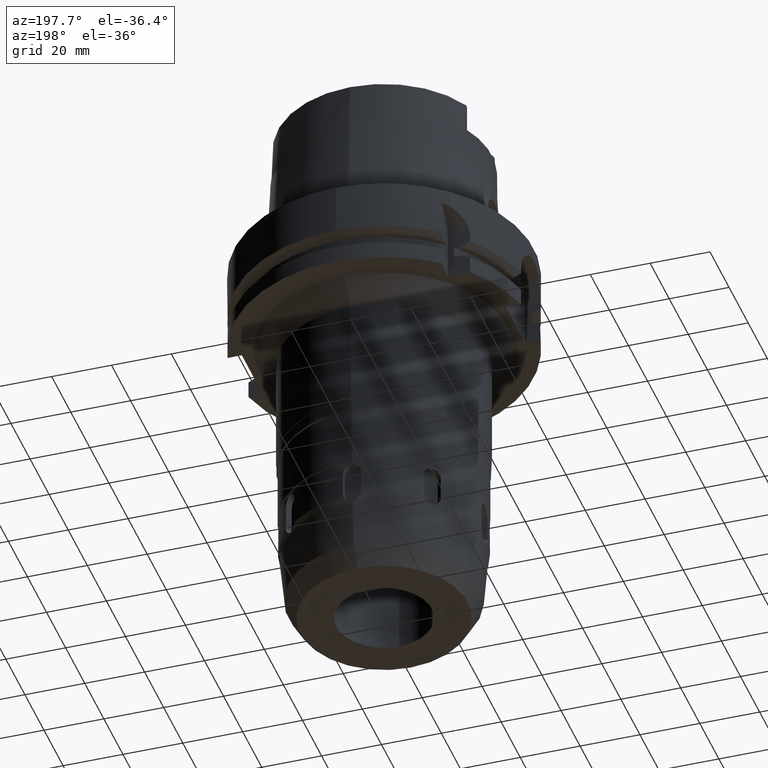
[diagram: clean part render]
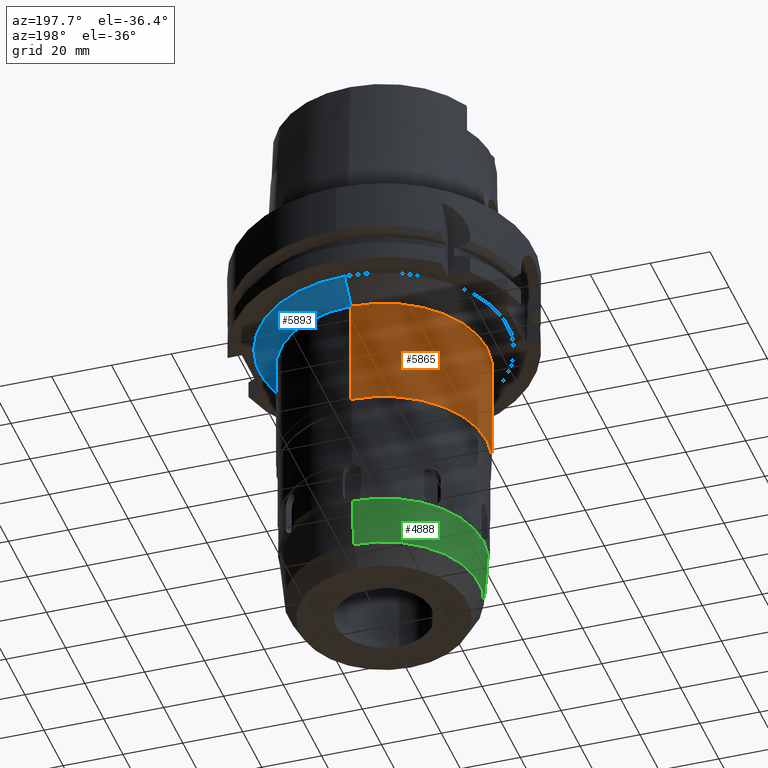
[diagram: same view with three faces highlighted in distinct colors, each labeled with its STEP entity id]
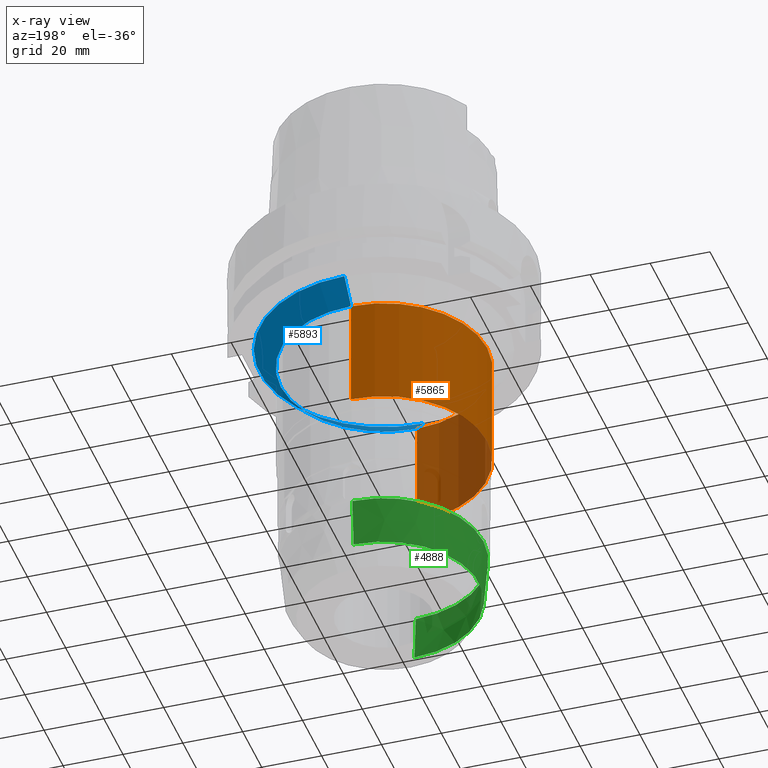
[diagram: x-ray of the same camera — body ghosted, the three highlighted faces saturated]
A machine part, auxiliary view with three faces highlighted in distinct colors.
The next image is the same camera in x-ray (body ghosted, the three faces saturated) — at least one of them is partly hidden behind the body in this view.
Their STEP definitions:

[orange] entity #5865 — the highlighted cylindrical surface (partial cylindrical patch) has radius 34.5 mm, axis along (0, 0, 1).
#2539=CARTESIAN_POINT('',(0.E0,0.E0,-7.28E1));
#2540=DIRECTION('',(0.E0,0.E0,1.E0));
#2541=DIRECTION('',(0.E0,1.E0,0.E0));
#2542=AXIS2_PLACEMENT_3D('',#2539,#2540,#2541);
#2563=DIRECTION('',(0.E0,0.E0,-1.E0));
#2564=VECTOR('',#2563,3.68E1);
#2565=CARTESIAN_POINT('',(0.E0,3.45E1,-3.6E1));
#2566=LINE('',#2565,#2564);
#2570=DIRECTION('',(0.E0,0.E0,-1.E0));
#2571=VECTOR('',#2570,3.68E1);
#2572=CARTESIAN_POINT('',(0.E0,-3.45E1,-3.6E1));
#2573=LINE('',#2572,#2571);
#2584=CARTESIAN_POINT('',(0.E0,0.E0,-3.6E1));
#2585=DIRECTION('',(0.E0,0.E0,-1.E0));
#2586=DIRECTION('',(0.E0,-1.E0,0.E0));
#2587=AXIS2_PLACEMENT_3D('',#2584,#2585,#2586);
#3933=CARTESIAN_POINT('',(0.E0,-3.45E1,-7.28E1));
#3934=CARTESIAN_POINT('',(0.E0,3.45E1,-7.28E1));
#3935=VERTEX_POINT('',#3933);
#3936=VERTEX_POINT('',#3934);
#3937=CARTESIAN_POINT('',(0.E0,3.45E1,-3.6E1));
#3938=VERTEX_POINT('',#3937);
#3939=CARTESIAN_POINT('',(0.E0,-3.45E1,-3.6E1));
#3940=VERTEX_POINT('',#3939);
#5853=CARTESIAN_POINT('',(0.E0,0.E0,-1.4425E2));
#5854=DIRECTION('',(0.E0,0.E0,1.E0));
#5855=DIRECTION('',(0.E0,1.E0,0.E0));
#5856=AXIS2_PLACEMENT_3D('',#5853,#5854,#5855);
#5857=CYLINDRICAL_SURFACE('',#5856,3.45E1);
#5858=ORIENTED_EDGE('',*,*,#5843,.F.);
#5860=ORIENTED_EDGE('',*,*,#5859,.F.);
#5861=ORIENTED_EDGE('',*,*,#5846,.T.);
#5862=ORIENTED_EDGE('',*,*,#5829,.F.);
#5863=EDGE_LOOP('',(#5858,#5860,#5861,#5862));
#5864=FACE_OUTER_BOUND('',#5863,.F.);
#2543=CIRCLE('',#2542,3.45E1);
#2588=CIRCLE('',#2587,3.45E1);
#5829=EDGE_CURVE('',#3936,#3935,#2543,.T.);
#5843=EDGE_CURVE('',#3938,#3936,#2566,.T.);
#5846=EDGE_CURVE('',#3940,#3935,#2573,.T.);
#5859=EDGE_CURVE('',#3940,#3938,#2588,.T.);
#5865=ADVANCED_FACE('',(#5864),#5857,.T.);

[blue] entity #5893 — the highlighted conical surface has half-angle 45 deg.
#2577=DIRECTION('',(0.E0,7.071067811865E-1,-7.071067811865E-1));
#2578=VECTOR('',#2577,9.899494936612E0);
#2579=CARTESIAN_POINT('',(0.E0,-4.15E1,-2.9E1));
#2580=LINE('',#2579,#2578);
#2592=DIRECTION('',(0.E0,-7.071067811865E-1,-7.071067811865E-1));
#2593=VECTOR('',#2592,9.899494936612E0);
#2594=CARTESIAN_POINT('',(0.E0,4.15E1,-2.9E1));
#2595=LINE('',#2594,#2593);
#2599=CARTESIAN_POINT('',(0.E0,0.E0,-3.6E1));
#2600=DIRECTION('',(0.E0,0.E0,-1.E0));
#2601=DIRECTION('',(0.E0,1.E0,0.E0));
#2602=AXIS2_PLACEMENT_3D('',#2599,#2600,#2601);
#2676=CARTESIAN_POINT('',(0.E0,0.E0,-2.9E1));
#2677=DIRECTION('',(0.E0,0.E0,-1.E0));
#2678=DIRECTION('',(0.E0,1.E0,0.E0));
#2679=AXIS2_PLACEMENT_3D('',#2676,#2677,#2678);
#3937=CARTESIAN_POINT('',(0.E0,3.45E1,-3.6E1));
#3938=VERTEX_POINT('',#3937);
#3939=CARTESIAN_POINT('',(0.E0,-3.45E1,-3.6E1));
#3940=VERTEX_POINT('',#3939);
#3941=CARTESIAN_POINT('',(0.E0,4.15E1,-2.9E1));
#3942=VERTEX_POINT('',#3941);
#3943=CARTESIAN_POINT('',(0.E0,-4.15E1,-2.9E1));
#3944=VERTEX_POINT('',#3943);
#5881=CARTESIAN_POINT('',(0.E0,0.E0,-3.25E1));
#5882=DIRECTION('',(0.E0,0.E0,1.E0));
#5883=DIRECTION('',(0.E0,1.E0,0.E0));
#5884=AXIS2_PLACEMENT_3D('',#5881,#5882,#5883);
#5885=CONICAL_SURFACE('',#5884,3.8E1,4.5E1);
#5886=ORIENTED_EDGE('',*,*,#5871,.T.);
#5887=ORIENTED_EDGE('',*,*,#5848,.T.);
#5888=ORIENTED_EDGE('',*,*,#5875,.F.);
#5890=ORIENTED_EDGE('',*,*,#5889,.F.);
#5891=EDGE_LOOP('',(#5886,#5887,#5888,#5890));
#5892=FACE_OUTER_BOUND('',#5891,.F.);
#2603=CIRCLE('',#2602,3.45E1);
#2680=CIRCLE('',#2679,4.15E1);
#5848=EDGE_CURVE('',#3938,#3940,#2603,.T.);
#5871=EDGE_CURVE('',#3942,#3938,#2595,.T.);
#5875=EDGE_CURVE('',#3944,#3940,#2580,.T.);
#5889=EDGE_CURVE('',#3942,#3944,#2680,.T.);
#5893=ADVANCED_FACE('',(#5892),#5885,.T.);

[green] entity #4888 — the highlighted conical surface has half-angle 5 deg.
#1091=DIRECTION('',(0.E0,8.715574274813E-2,-9.961946980917E-1));
#1092=VECTOR('',#1091,1.625803005369E1);
#1093=CARTESIAN_POINT('',(1.069420424425E-14,-3.325058647237E1,
-1.121638366591E2));
#1094=LINE('',#1093,#1092);
#1098=CARTESIAN_POINT('',(0.E0,0.E0,-1.2836E2));
#1099=DIRECTION('',(0.E0,0.E0,-1.E0));
#1100=DIRECTION('',(0.E0,-1.E0,0.E0));
#1101=AXIS2_PLACEMENT_3D('',#1098,#1099,#1100);
#1106=DIRECTION('',(0.E0,-8.715574274813E-2,-9.961946980917E-1));
#1107=VECTOR('',#1106,1.625803005369E1);
#1108=CARTESIAN_POINT('',(0.E0,3.325058647237E1,-1.121638366591E2));
#1109=LINE('',#1108,#1107);
#1720=CARTESIAN_POINT('',(0.E0,0.E0,-1.121638366591E2));
#1721=DIRECTION('',(0.E0,0.E0,-1.E0));
#1722=DIRECTION('',(0.E0,-1.E0,0.E0));
#1723=AXIS2_PLACEMENT_3D('',#1720,#1721,#1722);
#3729=CARTESIAN_POINT('',(0.E0,3.183360578742E1,-1.2836E2));
#3730=VERTEX_POINT('',#3729);
#3731=CARTESIAN_POINT('',(0.E0,-3.183360578742E1,-1.2836E2));
#3732=VERTEX_POINT('',#3731);
#3733=CARTESIAN_POINT('',(0.E0,3.325058647237E1,-1.121638366591E2));
#3734=VERTEX_POINT('',#3733);
#3735=CARTESIAN_POINT('',(2.546043091782E-14,-3.325058647238E1,
-1.121638366591E2));
#3736=VERTEX_POINT('',#3735);
#4874=CARTESIAN_POINT('',(0.E0,0.E0,-1.202619183296E2));
#4875=DIRECTION('',(0.E0,0.E0,1.E0));
#4876=DIRECTION('',(0.E0,1.E0,0.E0));
#4877=AXIS2_PLACEMENT_3D('',#4874,#4875,#4876);
#4878=CONICAL_SURFACE('',#4877,3.254209612989E1,5.E0);
#4880=ORIENTED_EDGE('',*,*,#4879,.F.);
#4882=ORIENTED_EDGE('',*,*,#4881,.F.);
#4884=ORIENTED_EDGE('',*,*,#4883,.T.);
#4885=ORIENTED_EDGE('',*,*,#4867,.T.);
#4886=EDGE_LOOP('',(#4880,#4882,#4884,#4885));
#4887=FACE_OUTER_BOUND('',#4886,.F.);
#1102=CIRCLE('',#1101,3.183360578742E1);
#1724=CIRCLE('',#1723,3.325058647238E1);
#4867=EDGE_CURVE('',#3732,#3730,#1102,.T.);
#4879=EDGE_CURVE('',#3734,#3730,#1109,.T.);
#4881=EDGE_CURVE('',#3736,#3734,#1724,.T.);
#4883=EDGE_CURVE('',#3736,#3732,#1094,.T.);
#4888=ADVANCED_FACE('',(#4887),#4878,.T.);